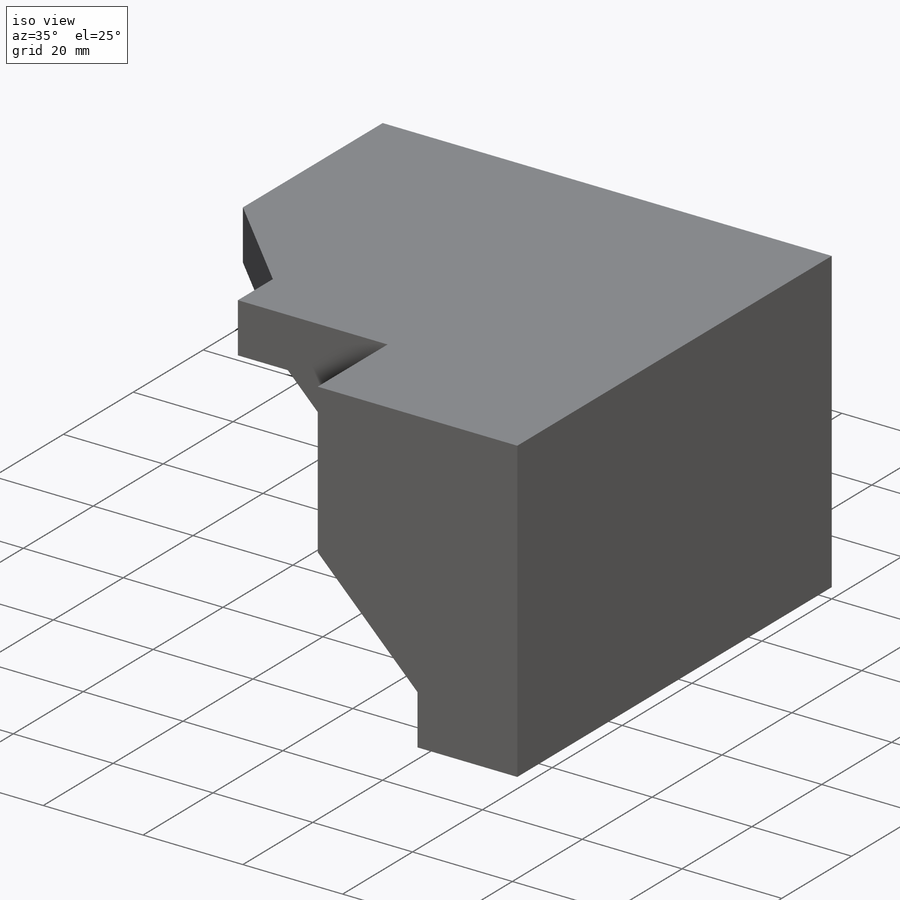
[diagram: iso view]
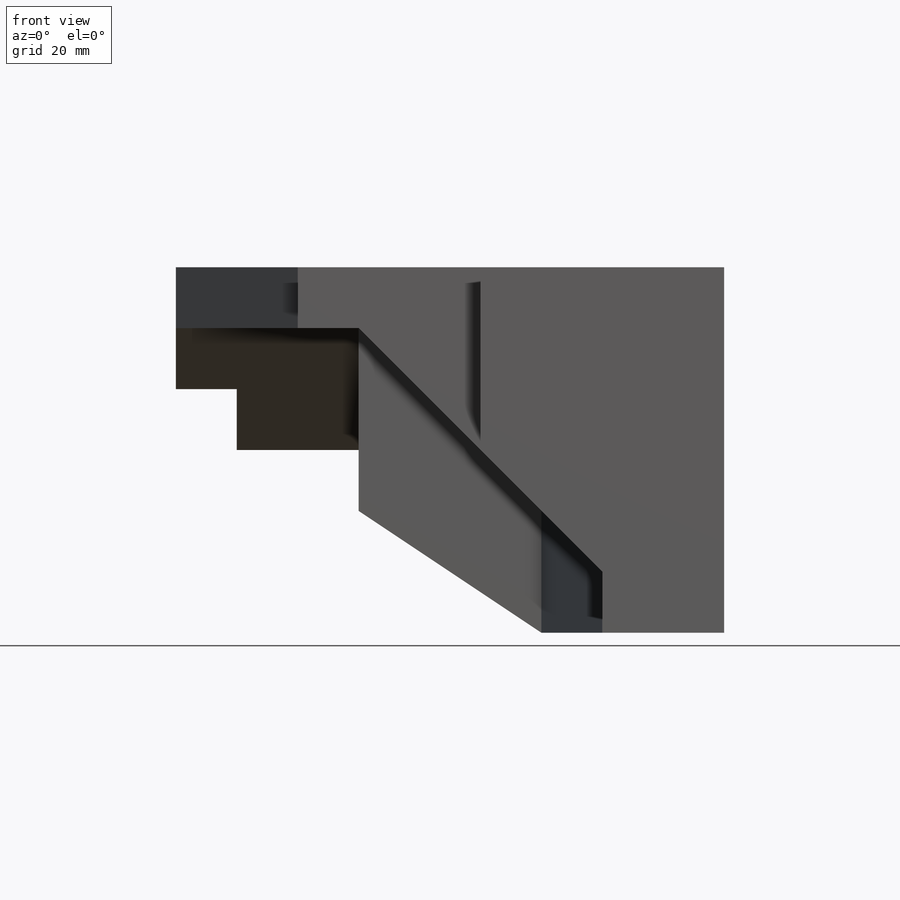
[diagram: front view]
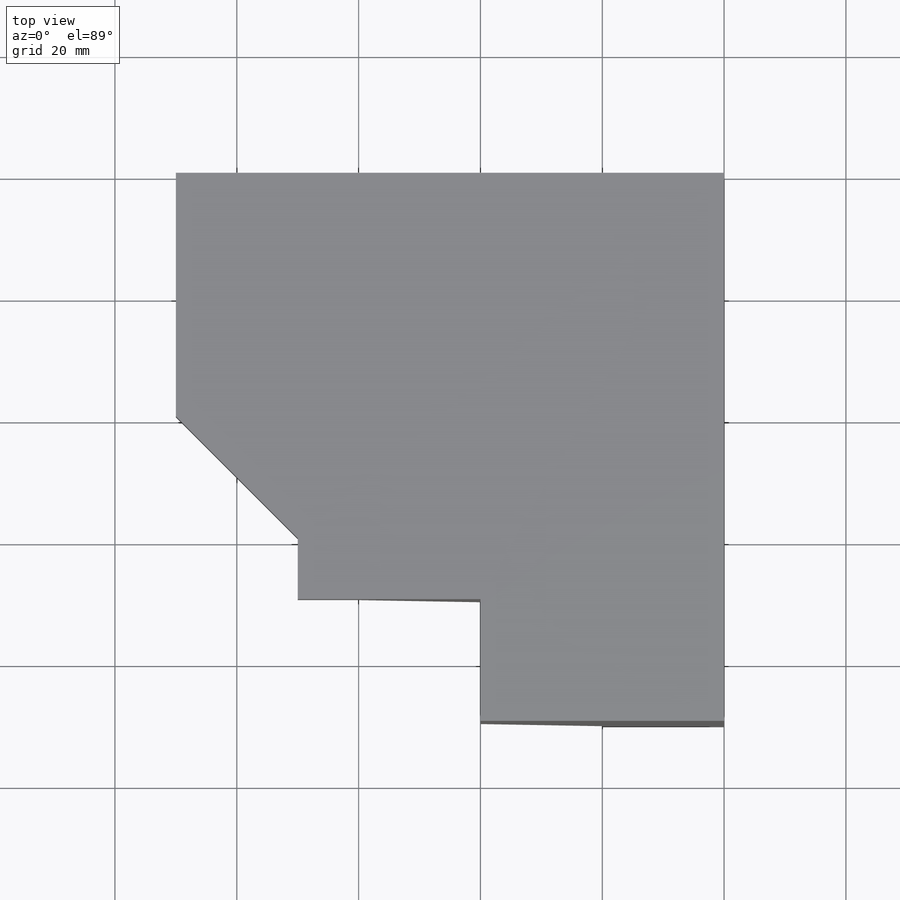
[diagram: top view]
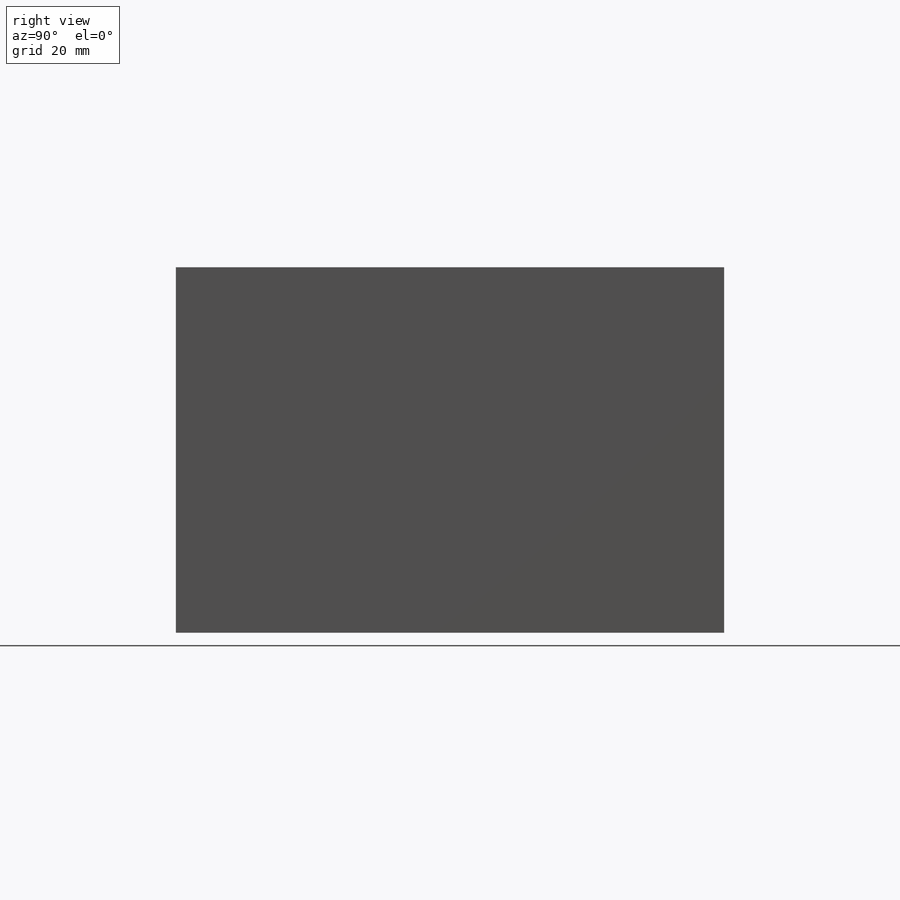
[diagram: right view]
SOLIDWORKS PART (.sldprt)
format: sldprt  version: not decoded by parser v0  size: 326,144 bytes
history: native  units: mm
features: sketch x15, extrude x12, cut_extrude x3, material x1, plane x1 (+13 scaffold rows collapsed)
feature tree (45):
  scaffold x13  (default folders/planes/origin — collapsed)
  material  "Material <not specified>"
  sketch  "Sketch1"  dims[D1=40.0mm D2=60.0mm D3=20.0mm D4=10.0mm D5=30.0mm]
  extrude  "Boss-Extrude1"  Depth=90mm
  plane  "Plane1"  Offset=70mm
  sketch  "Sketch2"  dims[D1=30.0mm D2=10.0mm D3=10.0mm D4=30.0mm]
  extrude  "Boss-Extrude2"  Depth=70mm
  sketch  "Sketch3"  dims[D1=20.0mm D2=20.0mm D3=10.0mm]
  extrude  "Boss-Extrude4"  Depth=10mm
  sketch  "Sketch4"  dims[D1=0.0mm]
  extrude  "Boss-Extrude6"  Depth=20mm
  sketch  "Sketch6"  dims[D1=10.0mm]
  cut_extrude  "Cut-Extrude1"  Depth=20mm
  sketch  "Sketch9"  dims[c1.D1=~18.597112mm c1.D2=~14.72137mm c2.D1=20.0mm c2.D2=20.0mm]
  extrude  "Boss-Extrude8"  Depth=10mm
  sketch  "Sketch10"  dims[D1=20.0mm]
  cut_extrude  "Cut-Extrude2"  Depth=10mm
  sketch  "Sketch11"  dims[D1=10.0mm]
  extrude  "Boss-Extrude9"  Depth=10mm
  sketch  "Sketch13"  dims[D1=20.0mm D2=~26.188045mm]
  extrude  "Boss-Extrude13"  Depth=30mm
  sketch  "Sketch14"  dims[D1=10.0mm]
  cut_extrude  "Cut-Extrude3"  Depth=10mm
  sketch  "Sketch15"  dims[c1.D1=10.0mm c1.D2=~14.142136mm c2.D1=0.0mm]
  extrude  "Boss-Extrude14"  Depth=30mm
  sketch  "Sketch16"  dims[D1=60.0mm D2=10.0mm D3=40.0mm]
  extrude  "Boss-Extrude15"  Depth=30mm
  sketch  "Sketch17"  dims[c1.D1=10.0mm c1.D2=20.0mm c2.D1=10.0mm c2.D3=20.0mm]
  extrude  "Boss-Extrude16"  Depth=40mm
  sketch  "Sketch18"  dims[D1=~5.390918mm]
  extrude  "Boss-Extrude17"  Depth=40mm
  sketch  "Sketch19"  dims[D1=~22.893353mm]
  extrude  "Boss-Extrude18"  Depth=10mm
decode coverage: 30 of 30 modeling features carry decoded parameters
note: ~ marks probable driven/reference dimensions
note: suppression state not decoded; provenance and decode notes live in map.json
